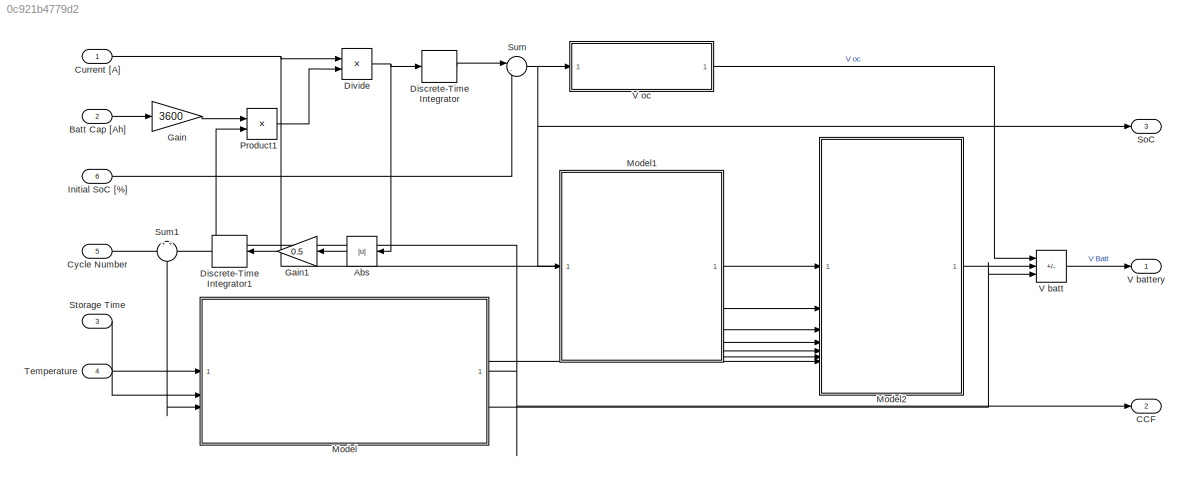
MODEL slx_0c921b4779d2
KIND model
CONFIG AbsTol = auto
CONFIG EnableMultiTasking = off
CONFIG FixedStep = auto
CONFIG MaxStep = auto
CONFIG MinStep = auto
CONFIG RelTol = 1e-3
CONFIG SampleTimeConstraint = Unconstrained
CONFIG SolverName = VariableStepAuto
CONFIG StartTime = 0.0
CONFIG StopTime = 300.0
BLOCK [Abs] Abs
  NameLocation = top
  SaturateOnIntegerOverflow = off
BLOCK [Inport] Batt Cap [Ah]
  Port = 2
BLOCK [Outport] CCF
  Port = 2
BLOCK [Inport] Current [A]
BLOCK [Inport] Cycle Number
  Port = 5
BLOCK [DiscreteIntegrator] Discrete-Time Integrator
  ICPrevOutput = DiscIntNeverNeededParam
  ICPrevScaledInput = DiscIntNeverNeededParam
  InitialConditionSetting = Auto
  SampleTime = -1
BLOCK [DiscreteIntegrator] Discrete-Time Integrator1
  ICPrevOutput = DiscIntNeverNeededParam
  ICPrevScaledInput = DiscIntNeverNeededParam
  InitialConditionSetting = Auto
  NameLocation = top
  SampleTime = -1
BLOCK [Product] Divide
  Inputs = */
BLOCK [Gain] Gain
  Gain = 3600
BLOCK [Gain] Gain1
  Gain = 0.5
  NameLocation = top
BLOCK [Inport] Initial SoC [%]
  Port = 6
BLOCK [ModelReference] Model
  ModelNameDialog = Eq4_CapacityCorrectionFactor.slx
  ModelReferenceVersion = 2.12
BLOCK [ModelReference] Model1
  ModelNameDialog = Eq8to12_RC_Components
  ModelReferenceVersion = 2.6
BLOCK [ModelReference] Model2
  ModelNameDialog = Eq_Zeq_circuit.slx
  ModelReferenceVersion = 1.16
BLOCK [Product] Product1
BLOCK [Outport] SoC
  Port = 3
BLOCK [Inport] Storage Time
  Port = 3
BLOCK [Sum] Sum
  Inputs = |-+
BLOCK [Sum] Sum1
  NameLocation = left
BLOCK [Inport] Temperature
  Port = 4
BLOCK [Sum] V batt
  IconShape = rectangular
  Inputs = +-+
BLOCK [Outport] V battery
BLOCK [ModelReference] V oc
  ModelNameDialog = Eq2_SOC_VOC.slx
  ModelReferenceVersion = 2.4
LINE Abs:1 -> Gain1:1
LINE Batt Cap [Ah]:1 -> Gain:1
NET Current [A]:1 -> Divide:1, Model2:1
LINE Cycle Number:1 -> Sum1:1
LINE Discrete-Time Integrator1:1 -> Sum1:2
LINE Discrete-Time Integrator:1 -> Sum:1
NET Divide:1 -> Abs:1, Discrete-Time Integrator:1
LINE Gain1:1 -> Discrete-Time Integrator1:1
LINE Gain:1 -> Product1:1
LINE Initial SoC [%]:1 -> Sum:2
LINE Model1:1 -> Model2:2
LINE Model1:2 -> Model2:3
LINE Model1:3 -> Model2:4
LINE Model1:4 -> Model2:5
LINE Model1:5 -> Model2:6
LINE Model2:1 -> V batt:2
NET Model:1 -> CCF:1, Product1:2
LINE Model:2 -> Model2:7
LINE Model:3 -> V batt:3
LINE Product1:1 -> Divide:2
LINE Storage Time:1 -> Model:1
LINE Sum1:1 -> Model:3
NET Sum:1 -> Model1:1, SoC:1, V oc:1
LINE Temperature:1 -> Model:2
LINE V batt:1 -> V battery:1
LINE V oc:1 -> V batt:1
note: NET lines group one-source signal fan-out (src -> all destinations, sorted); 1:1 wires keep LINE
